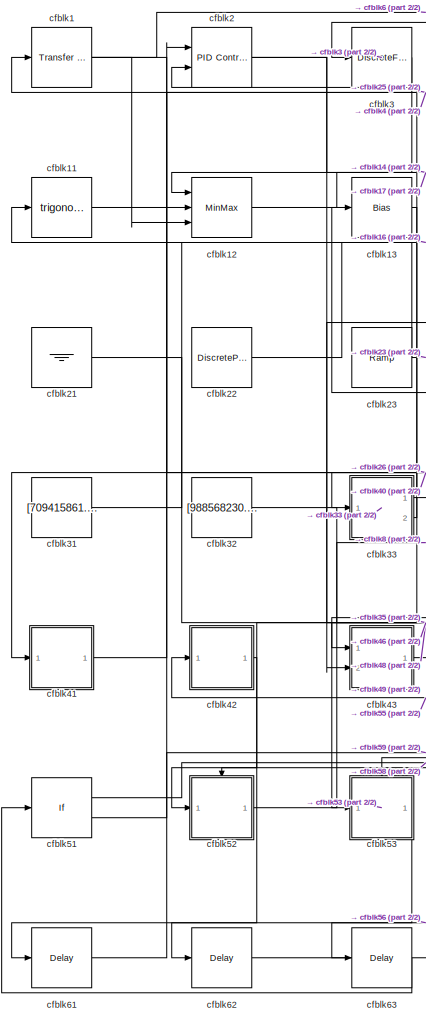
[diagram: root canvas - part 1/2, left side, full height]
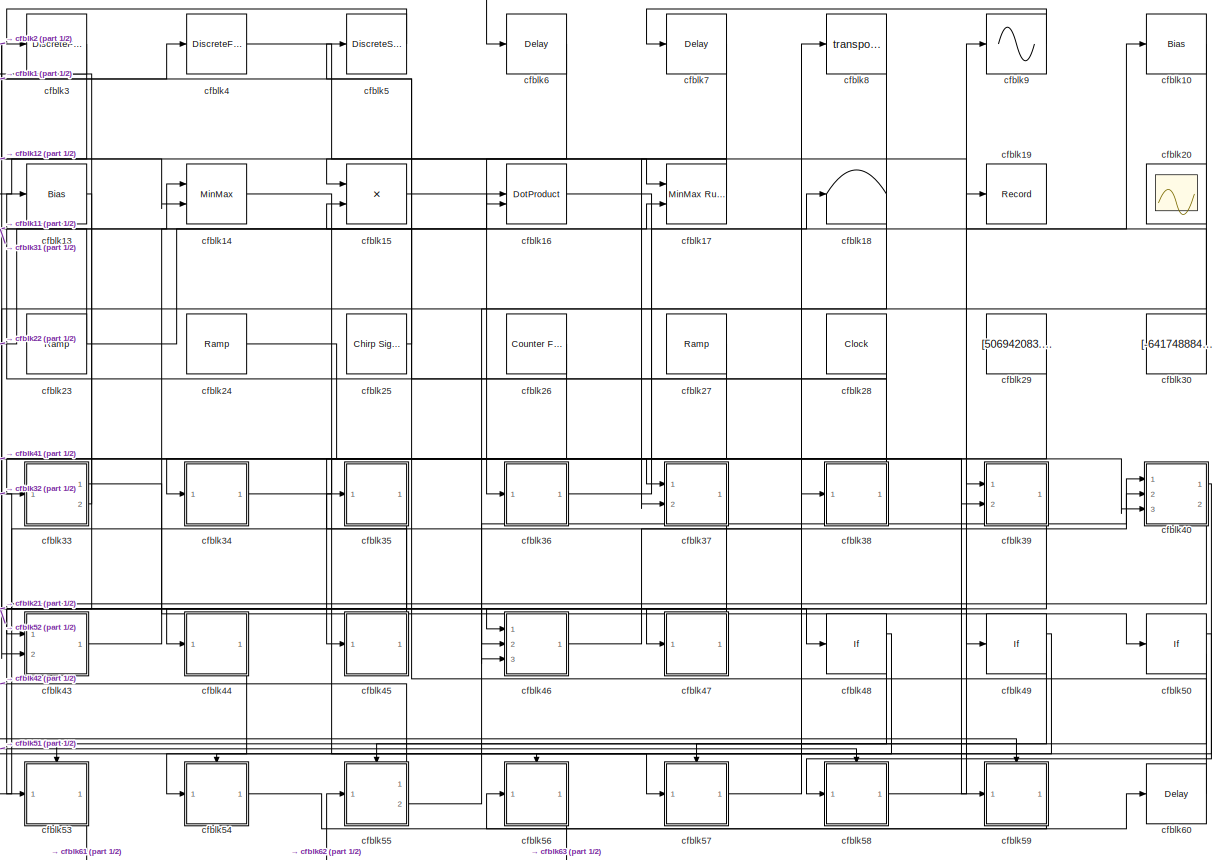
[diagram: root canvas - part 2/2, most of the canvas]
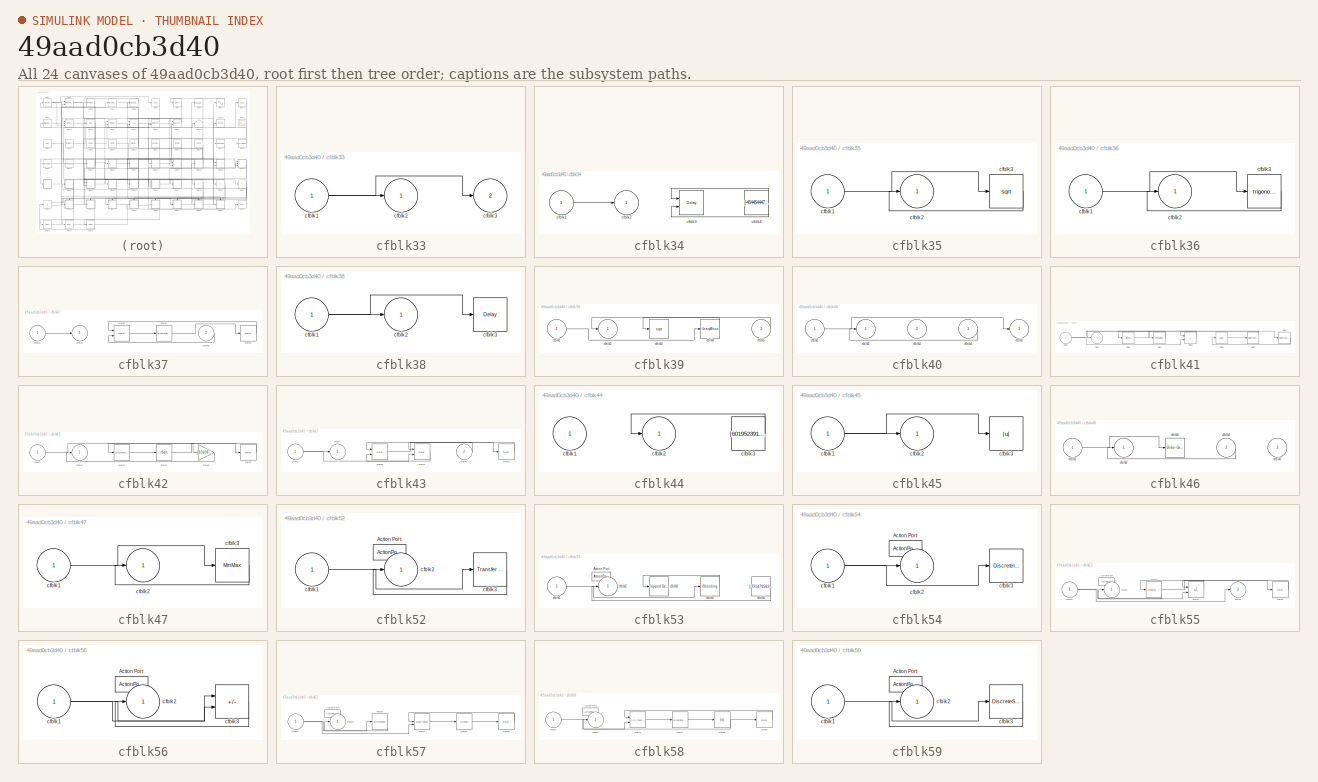
[diagram: thumbnail index - all 24 canvases of the model, root first then tree order]
MODEL slx_49aad0cb3d40
KIND model
CONFIG AbsTol = auto
CONFIG EnableMultiTasking = off
CONFIG FixedStep = auto
CONFIG MaxStep = auto
CONFIG MinStep = auto
CONFIG RelTol = 1e-3
CONFIG SampleTimeConstraint = Unconstrained
CONFIG SolverName = VariableStepAuto
CONFIG StartTime = 0.0
CONFIG StopTime = 10.0
BLOCK [Reference] cfblk1  REF=simulink/Discrete/Transfer Fcn
First Order
  Ports = [1, 1]
  SourceBlock = simulink/Discrete/Transfer Fcn\nFirst Order
  SourceProductBaseCode = SL
  SourceType = First Order Transfer Fcn
BLOCK [Bias] cfblk10
  Bias = [728423195.667612]
  SaturateOnIntegerOverflow = off
BLOCK [Trigonometry] cfblk11
  Ports = [1, 1]
BLOCK [MinMax] cfblk12
  Function = max
  Inputs = 3
  Ports = [3, 1]
BLOCK [Bias] cfblk13
  Bias = [-945384266.597924]
  SaturateOnIntegerOverflow = off
BLOCK [MinMax] cfblk14
  Function = max
  Inputs = 2
  Ports = [2, 1]
BLOCK [Product] cfblk15
  Inputs = **
  Ports = [2, 1]
BLOCK [DotProduct] cfblk16
  OutDataTypeStr = Inherit: Inherit via internal rule
BLOCK [Reference] cfblk17  REF=simulink/Math
Operations/MinMax
Running
Resettable
  Ports = [2, 1]
  SourceBlock = simulink/Math\nOperations/MinMax\nRunning\nResettable
  SourceProductBaseCode = SL
  SourceType = MinMax Running Resettable
BLOCK [Terminator] cfblk18
BLOCK [Record] cfblk19
  FileSettingsInternal = {"entries":[{"content":{"excelSettings":{"content":{},"type":"Streamout.ExcelSettings"}},"type":"Streamout.FileSettingStorage","uuid":"3911a472-867c-4a1a-a0aa-010af150e6e4"}],"packageUris":["http://schema.mathworks.com/mf0/streamout_blocks/R2020a"],"version":"1.0"}
  Ports = [1]
  SignalsInternal = {"entries":[{"content":{"signals":[{"content":{"blockPath":["sampleModel241/cfblk19"],"channel":[],"dimensions":[1],"domain":"sampleModel241/cfblk19","lineColor":"#b746ff","plots":[1],"port":1,"sid":[""],"signalID":9613,"signalName":"cfblk30"},"type":"RecordBlkView.Signal","uuid":"fca61b86-a5da-40ad-9889-f5b6e864dda8"}]},"type":"RecordBlkView.InputSignals","uuid":"c25a0052-ff4f-4ec1-b952-93fc3bd27...<+97ch>
  VisualizationBindings = {"sparklinesplugin":{"info":[{"bindingParametersList":[],"subplotID":1}]}}
BLOCK [Reference] cfblk2  REF=slpidlib/PID Controller (2DOF)
  Ports = [2, 1]
  SourceBlock = slpidlib/PID Controller (2DOF)
  SourceProductBaseCode = SL
  SourceType = PID 2dof
BLOCK [Scope] cfblk20
  Floating = on
  NumInputPorts = 1
  Ports = []
BLOCK [Ground] cfblk21
BLOCK [DiscretePulseGenerator] cfblk22
  Amplitude = [-456282660.783524]
  Period = [50439174.419016]
  PhaseDelay = [5.000000]
  Ports = [0, 1]
  PulseType = Time based
  PulseWidth = 5
BLOCK [Reference] cfblk23  REF=simulink/Sources/Ramp
  Ports = [0, 1]
  SourceBlock = simulink/Sources/Ramp
  SourceProductBaseCode = SL
  SourceType = Ramp
BLOCK [Reference] cfblk24  REF=simulink/Sources/Ramp
  Ports = [0, 1]
  SourceBlock = simulink/Sources/Ramp
  SourceProductBaseCode = SL
  SourceType = Ramp
BLOCK [Reference] cfblk25  REF=simulink/Sources/Chirp Signal
  Ports = [0, 1]
  SourceBlock = simulink/Sources/Chirp Signal
  SourceProductBaseCode = SL
  SourceType = chirp
BLOCK [Reference] cfblk26  REF=simulink/Sources/Counter
Free-Running
  Ports = [0, 1]
  SourceBlock = simulink/Sources/Counter\nFree-Running
  SourceProductBaseCode = SL
  SourceType = Counter Free-Running
BLOCK [Reference] cfblk27  REF=simulink/Sources/Ramp
  Ports = [0, 1]
  SourceBlock = simulink/Sources/Ramp
  SourceProductBaseCode = SL
  SourceType = Ramp
BLOCK [Clock] cfblk28
BLOCK [Constant] cfblk29
  SampleTime = 1
  Value = [506942083.331249]
BLOCK [DiscreteFilter] cfblk3
  InputPortMap = u0
  Ports = [1, 1]
  SampleTime = 1
BLOCK [Constant] cfblk30
  SampleTime = 1
  Value = [-641748884.333943]
BLOCK [Constant] cfblk31
  SampleTime = 1
  Value = [709415861.361676]
BLOCK [Constant] cfblk32
  SampleTime = 1
  Value = [988568230.358613]
BLOCK [SubSystem] cfblk33
  Ports = [1, 2]
  RequestExecContextInheritance = off
BLOCK [Inport] cfblk33/cfblk1
BLOCK [Outport] cfblk33/cfblk2
BLOCK [Outport] cfblk33/cfblk3
  Port = 2
BLOCK [SubSystem] cfblk34
  Ports = [1, 1]
  RequestExecContextInheritance = off
BLOCK [Inport] cfblk34/cfblk1
BLOCK [Outport] cfblk34/cfblk2
BLOCK [Delay] cfblk34/cfblk3
  DelayLengthSource = Input port
  InputPortMap = u0,p1
  Ports = [2, 1]
  SampleTime = 1
BLOCK [Constant] cfblk34/cfblk4
  SampleTime = 1
  Value = [-454454447.053880]
BLOCK [SubSystem] cfblk35
  Ports = [1, 1]
  RequestExecContextInheritance = off
BLOCK [Inport] cfblk35/cfblk1
BLOCK [Outport] cfblk35/cfblk2
BLOCK [Sqrt] cfblk35/cfblk3
BLOCK [SubSystem] cfblk36
  Ports = [1, 1]
  RequestExecContextInheritance = off
BLOCK [Inport] cfblk36/cfblk1
BLOCK [Outport] cfblk36/cfblk2
BLOCK [Trigonometry] cfblk36/cfblk3
  Ports = [1, 1]
BLOCK [SubSystem] cfblk37
  Ports = [2, 1]
  RequestExecContextInheritance = off
BLOCK [Inport] cfblk37/cfblk1
BLOCK [Outport] cfblk37/cfblk2
BLOCK [Delay] cfblk37/cfblk3
  DelayLengthSource = Input port
  InputPortMap = u0,p1
  Ports = [2, 1]
  SampleTime = 1
BLOCK [DiscreteFilter] cfblk37/cfblk4
  InputPortMap = u0
  Ports = [1, 1]
  SampleTime = 1
BLOCK [Inport] cfblk37/cfblk5
  Port = 2
BLOCK [Delay] cfblk37/cfblk6
  InputPortMap = u0
  Ports = [1, 1]
  SampleTime = 1
BLOCK [SubSystem] cfblk38
  Ports = [1, 1]
  RequestExecContextInheritance = off
BLOCK [Inport] cfblk38/cfblk1
BLOCK [Outport] cfblk38/cfblk2
BLOCK [Delay] cfblk38/cfblk3
  InputPortMap = u0
  Ports = [1, 1]
  SampleTime = 1
BLOCK [SubSystem] cfblk39
  Ports = [2, 1]
  RequestExecContextInheritance = off
BLOCK [Inport] cfblk39/cfblk1
BLOCK [Outport] cfblk39/cfblk2
BLOCK [Sqrt] cfblk39/cfblk3
BLOCK [UnaryMinus] cfblk39/cfblk4
BLOCK [Inport] cfblk39/cfblk5
  Port = 2
BLOCK [DiscreteFilter] cfblk4
  InputPortMap = u0
  Ports = [1, 1]
  SampleTime = 1
BLOCK [SubSystem] cfblk40
  Ports = [3, 2]
  RequestExecContextInheritance = off
BLOCK [Inport] cfblk40/cfblk1
BLOCK [Outport] cfblk40/cfblk2
BLOCK [Inport] cfblk40/cfblk3
  Port = 2
BLOCK [Inport] cfblk40/cfblk4
  Port = 3
BLOCK [Outport] cfblk40/cfblk5
  Port = 2
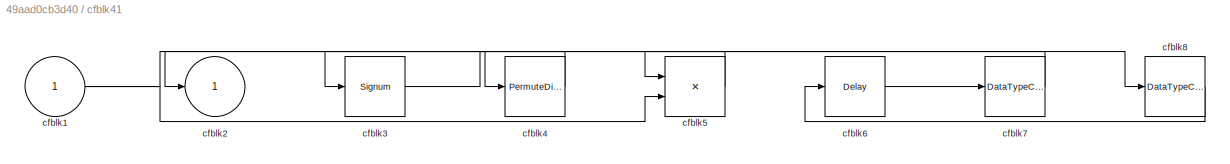
BLOCK [SubSystem] cfblk41
  Ports = [1, 1]
  RequestExecContextInheritance = off
BLOCK [Inport] cfblk41/cfblk1
BLOCK [Outport] cfblk41/cfblk2
BLOCK [Signum] cfblk41/cfblk3
BLOCK [PermuteDimensions] cfblk41/cfblk4
BLOCK [Product] cfblk41/cfblk5
  Inputs = **
  Ports = [2, 1]
BLOCK [Delay] cfblk41/cfblk6
  InputPortMap = u0
  Ports = [1, 1]
  SampleTime = 1
BLOCK [DataTypeConversion] cfblk41/cfblk7
  RndMeth = Floor
  SaturateOnIntegerOverflow = off
BLOCK [DataTypeConversion] cfblk41/cfblk8
  RndMeth = Floor
  SaturateOnIntegerOverflow = off
BLOCK [SubSystem] cfblk42
  Ports = [1, 1]
  RequestExecContextInheritance = off
BLOCK [Inport] cfblk42/cfblk1
BLOCK [Outport] cfblk42/cfblk2
BLOCK [DiscreteStateSpace] cfblk42/cfblk3
BLOCK [Sqrt] cfblk42/cfblk4
  AlgorithmType = Newton-Raphson
  Operator = rSqrt
BLOCK [Gain] cfblk42/cfblk5
  Gain = [-636085994.797784]
BLOCK [Delay] cfblk42/cfblk6
  InputPortMap = u0
  Ports = [1, 1]
  SampleTime = 1
BLOCK [SubSystem] cfblk43
  Ports = [2, 1]
  RequestExecContextInheritance = off
BLOCK [Inport] cfblk43/cfblk1
BLOCK [Outport] cfblk43/cfblk2
BLOCK [Delay] cfblk43/cfblk3
  InputPortMap = u0,e6
  Ports = [2, 1]
  SampleTime = 1
  ShowEnablePort = on
BLOCK [Delay] cfblk43/cfblk4
  InputPortMap = u0,e6
  Ports = [2, 1]
  SampleTime = 1
  ShowEnablePort = on
BLOCK [Inport] cfblk43/cfblk5
  Port = 2
BLOCK [Delay] cfblk43/cfblk6
  InputPortMap = u0
  Ports = [1, 1]
  SampleTime = 1
BLOCK [SubSystem] cfblk44
  Ports = [1, 1]
  RequestExecContextInheritance = off
BLOCK [Inport] cfblk44/cfblk1
BLOCK [Outport] cfblk44/cfblk2
BLOCK [Constant] cfblk44/cfblk3
  SampleTime = 1
  Value = [601952391.588417]
BLOCK [SubSystem] cfblk45
  Ports = [1, 1]
  RequestExecContextInheritance = off
BLOCK [Inport] cfblk45/cfblk1
BLOCK [Outport] cfblk45/cfblk2
BLOCK [Abs] cfblk45/cfblk3
  SaturateOnIntegerOverflow = off
BLOCK [SubSystem] cfblk46
  Ports = [3, 1]
  RequestExecContextInheritance = off
BLOCK [Inport] cfblk46/cfblk1
BLOCK [Outport] cfblk46/cfblk2
BLOCK [Reference] cfblk46/cfblk3  REF=simulink/Math
Operations/Slider
Gain
  Ports = [1, 1]
  SourceBlock = simulink/Math\nOperations/Slider\nGain
  SourceProductBaseCode = SL
  SourceType = Slider Gain
BLOCK [Inport] cfblk46/cfblk4
  Port = 2
BLOCK [Inport] cfblk46/cfblk5
  Port = 3
BLOCK [SubSystem] cfblk47
  Ports = [1, 1]
  RequestExecContextInheritance = off
BLOCK [Inport] cfblk47/cfblk1
BLOCK [Outport] cfblk47/cfblk2
BLOCK [MinMax] cfblk47/cfblk3
  Function = max
  Ports = [1, 1]
BLOCK [If] cfblk48
  IfExpression = u1 >= 0
  Ports = [1, 2]
  SampleTime = 1
BLOCK [If] cfblk49
  IfExpression = u1 >= 0
  Ports = [1, 2]
  SampleTime = 1
BLOCK [DiscreteStateSpace] cfblk5
BLOCK [If] cfblk50
  IfExpression = u1 >= 0
  Ports = [1, 2]
  SampleTime = 1
BLOCK [If] cfblk51
  IfExpression = u1 >= 0
  Ports = [1, 2]
  SampleTime = 1
BLOCK [SubSystem] cfblk52
  Ports = [1, 1, 0, 0, 0, 0, 0, 1]
  RequestExecContextInheritance = off
  TreatAsAtomicUnit = on
BLOCK [ActionPort] cfblk52/Action Port
  ActionPortLabel = if(u1 >= 0)
BLOCK [Inport] cfblk52/cfblk1
BLOCK [Outport] cfblk52/cfblk2
BLOCK [Reference] cfblk52/cfblk3  REF=simulink/Discrete/Transfer Fcn
Lead or Lag
  Ports = [1, 1]
  SourceBlock = simulink/Discrete/Transfer Fcn\nLead or Lag
  SourceProductBaseCode = SL
  SourceType = Lead or Lag Compensator
BLOCK [SubSystem] cfblk53
  Ports = [1, 1, 0, 0, 0, 0, 0, 1]
  RequestExecContextInheritance = off
  TreatAsAtomicUnit = on
BLOCK [ActionPort] cfblk53/Action Port
  ActionPortLabel = else
BLOCK [Inport] cfblk53/cfblk1
BLOCK [Outport] cfblk53/cfblk2
BLOCK [Reference] cfblk53/cfblk3  REF=simulink/Discrete/Tapped Delay
  Ports = [1, 1]
  SourceBlock = simulink/Discrete/Tapped Delay
  SourceProductBaseCode = SL
  SourceType = Tapped Delay Line
BLOCK [Rounding] cfblk53/cfblk4
BLOCK [Constant] cfblk53/cfblk5
  SampleTime = 1
  Value = [-771479563.429662]
BLOCK [SubSystem] cfblk54
  Ports = [1, 1, 0, 0, 0, 0, 0, 1]
  RequestExecContextInheritance = off
  TreatAsAtomicUnit = on
BLOCK [ActionPort] cfblk54/Action Port
  ActionPortLabel = if(u1 >= 0)
BLOCK [Inport] cfblk54/cfblk1
BLOCK [Outport] cfblk54/cfblk2
BLOCK [DiscreteIntegrator] cfblk54/cfblk3
  ICPrevOutput = DiscIntNeverNeededParam
  ICPrevScaledInput = DiscIntNeverNeededParam
  InitialConditionSetting = Auto
  Ports = [1, 1]
  SampleTime = -1
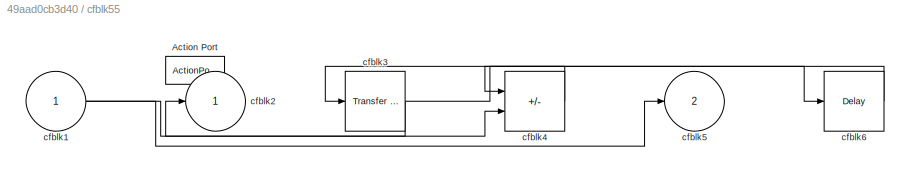
BLOCK [SubSystem] cfblk55
  Ports = [1, 2, 0, 0, 0, 0, 0, 1]
  RequestExecContextInheritance = off
  TreatAsAtomicUnit = on
BLOCK [ActionPort] cfblk55/Action Port
  ActionPortLabel = else
BLOCK [Inport] cfblk55/cfblk1
BLOCK [Outport] cfblk55/cfblk2
BLOCK [Reference] cfblk55/cfblk3  REF=simulink/Discrete/Transfer Fcn
Lead or Lag
  Ports = [1, 1]
  SourceBlock = simulink/Discrete/Transfer Fcn\nLead or Lag
  SourceProductBaseCode = SL
  SourceType = Lead or Lag Compensator
BLOCK [Sum] cfblk55/cfblk4
  IconShape = rectangular
  Inputs = +-
  Ports = [2, 1]
BLOCK [Outport] cfblk55/cfblk5
  Port = 2
BLOCK [Delay] cfblk55/cfblk6
  InputPortMap = u0
  Ports = [1, 1]
BLOCK [SubSystem] cfblk56
  Ports = [1, 1, 0, 0, 0, 0, 0, 1]
  RequestExecContextInheritance = off
  TreatAsAtomicUnit = on
BLOCK [ActionPort] cfblk56/Action Port
  ActionPortLabel = if(u1 >= 0)
BLOCK [Inport] cfblk56/cfblk1
BLOCK [Outport] cfblk56/cfblk2
BLOCK [Sum] cfblk56/cfblk3
  IconShape = rectangular
  Inputs = +-
  Ports = [2, 1]
BLOCK [SubSystem] cfblk57
  Ports = [1, 1, 0, 0, 0, 0, 0, 1]
  RequestExecContextInheritance = off
  TreatAsAtomicUnit = on
BLOCK [ActionPort] cfblk57/Action Port
  ActionPortLabel = else
BLOCK [Inport] cfblk57/cfblk1
BLOCK [Outport] cfblk57/cfblk2
BLOCK [Reference] cfblk57/cfblk3  REF=simulink/Discrete/Difference
  Ports = [1, 1]
  SourceBlock = simulink/Discrete/Difference
  SourceProductBaseCode = SL
  SourceType = Difference
BLOCK [DotProduct] cfblk57/cfblk4
  OutDataTypeStr = Inherit: Inherit via internal rule
BLOCK [Signum] cfblk57/cfblk5
BLOCK [Delay] cfblk57/cfblk6
  InputPortMap = u0
  Ports = [1, 1]
BLOCK [SubSystem] cfblk58
  Ports = [1, 1, 0, 0, 0, 0, 0, 1]
  RequestExecContextInheritance = off
  TreatAsAtomicUnit = on
BLOCK [ActionPort] cfblk58/Action Port
  ActionPortLabel = if(u1 >= 0)
BLOCK [Inport] cfblk58/cfblk1
BLOCK [Outport] cfblk58/cfblk2
BLOCK [Reference] cfblk58/cfblk3  REF=slpidlib/PID Controller (2DOF)
  Ports = [2, 1]
  SourceBlock = slpidlib/PID Controller (2DOF)
  SourceProductBaseCode = SL
  SourceType = PID 2dof
BLOCK [DiscreteIntegrator] cfblk58/cfblk4
  ICPrevOutput = DiscIntNeverNeededParam
  ICPrevScaledInput = DiscIntNeverNeededParam
  InitialConditionSetting = Auto
  Ports = [1, 1]
  SampleTime = -1
BLOCK [Abs] cfblk58/cfblk5
  SaturateOnIntegerOverflow = off
BLOCK [Delay] cfblk58/cfblk6
  InputPortMap = u0
  Ports = [1, 1]
BLOCK [SubSystem] cfblk59
  Ports = [1, 1, 0, 0, 0, 0, 0, 1]
  RequestExecContextInheritance = off
  TreatAsAtomicUnit = on
BLOCK [ActionPort] cfblk59/Action Port
  ActionPortLabel = else
BLOCK [Inport] cfblk59/cfblk1
BLOCK [Outport] cfblk59/cfblk2
BLOCK [DiscreteStateSpace] cfblk59/cfblk3
  SampleTime = -1
BLOCK [Delay] cfblk6
  InputPortMap = u0
  Ports = [1, 1]
  SampleTime = 1
BLOCK [Delay] cfblk60
  InputPortMap = u0
  Ports = [1, 1]
  SampleTime = 1
BLOCK [Delay] cfblk61
  InputPortMap = u0
  Ports = [1, 1]
  SampleTime = 1
BLOCK [Delay] cfblk62
  InputPortMap = u0
  Ports = [1, 1]
  SampleTime = 1
BLOCK [Delay] cfblk63
  InputPortMap = u0
  Ports = [1, 1]
  SampleTime = 1
BLOCK [Delay] cfblk7
  InputPortMap = u0
  Ports = [1, 1]
  SampleTime = 1
BLOCK [Math] cfblk8
  Operator = transpose
  Ports = [1, 1]
BLOCK [Sin] cfblk9
  Ports = [1, 1]
  SampleTime = 0
  TimeSource = Use external signal
LINE cfblk10:1 -> cfblk46:2
LINE cfblk11:1 -> cfblk4:1
LINE cfblk12:1 -> cfblk17:1
LINE cfblk13:1 -> cfblk43:1
LINE cfblk14:1 -> cfblk57:1
LINE cfblk15:1 -> cfblk16:2
LINE cfblk16:1 -> cfblk39:2
LINE cfblk17:1 -> cfblk15:1
NET cfblk1:1 -> cfblk12:3, cfblk40:3, cfblk6:1
LINE cfblk21:1 -> cfblk46:3
LINE cfblk22:1 -> cfblk16:1
NET cfblk23:1 -> cfblk10:1, cfblk11:1
LINE cfblk24:1 -> cfblk59:1
LINE cfblk25:1 -> cfblk1:1
LINE cfblk26:1 -> cfblk41:1
LINE cfblk27:1 -> cfblk34:1
LINE cfblk28:1 -> cfblk33:1
LINE cfblk29:1 -> cfblk45:1
NET cfblk2:1 -> cfblk14:2, cfblk49:1
LINE cfblk30:1 -> cfblk19:1
LINE cfblk31:1 -> cfblk14:1
LINE cfblk32:1 -> cfblk48:1
NET cfblk33/cfblk1:1 -> cfblk33/cfblk2:1, cfblk33/cfblk3:1
LINE cfblk33:1 -> cfblk50:1
LINE cfblk33:2 -> cfblk2:2
LINE cfblk34/cfblk1:1 -> cfblk34/cfblk2:1
NET cfblk34/cfblk4:1 -> cfblk34/cfblk3:1, cfblk34/cfblk3:2
LINE cfblk34:1 -> cfblk37:1
LINE cfblk35/cfblk1:1 -> cfblk35/cfblk3:1
LINE cfblk35/cfblk3:1 -> cfblk35/cfblk2:1
LINE cfblk35:1 -> cfblk52:1
LINE cfblk36/cfblk1:1 -> cfblk36/cfblk3:1
LINE cfblk36/cfblk3:1 -> cfblk36/cfblk2:1
LINE cfblk36:1 -> cfblk18:1
LINE cfblk37/cfblk1:1 -> cfblk37/cfblk2:1
LINE cfblk37/cfblk3:1 -> cfblk37/cfblk4:1
LINE cfblk37/cfblk4:1 -> cfblk37/cfblk6:1
LINE cfblk37/cfblk5:1 -> cfblk37/cfblk3:2
LINE cfblk37/cfblk6:1 -> cfblk37/cfblk3:1
LINE cfblk37:1 -> cfblk47:1
NET cfblk38/cfblk1:1 -> cfblk38/cfblk2:1, cfblk38/cfblk3:1
NET cfblk38:1 -> cfblk13:1, cfblk5:1
LINE cfblk39/cfblk1:1 -> cfblk39/cfblk4:1
LINE cfblk39/cfblk4:1 -> cfblk39/cfblk3:1
LINE cfblk39/cfblk5:1 -> cfblk39/cfblk2:1
LINE cfblk39:1 -> cfblk46:1
LINE cfblk3:1 -> cfblk12:1
LINE cfblk40/cfblk1:1 -> cfblk40/cfblk5:1
LINE cfblk40/cfblk4:1 -> cfblk40/cfblk2:1
LINE cfblk40:1 -> cfblk58:1
LINE cfblk40:2 -> cfblk53:1
NET cfblk41/cfblk1:1 -> cfblk41/cfblk4:1, cfblk41/cfblk5:2
LINE cfblk41/cfblk3:1 -> cfblk41/cfblk8:1
LINE cfblk41/cfblk4:1 -> cfblk41/cfblk2:1
LINE cfblk41/cfblk5:1 -> cfblk41/cfblk3:1
LINE cfblk41/cfblk6:1 -> cfblk41/cfblk7:1
LINE cfblk41/cfblk7:1 -> cfblk41/cfblk5:1
LINE cfblk41/cfblk8:1 -> cfblk41/cfblk6:1
LINE cfblk41:1 -> cfblk2:1
LINE cfblk42/cfblk1:1 -> cfblk42/cfblk5:1
LINE cfblk42/cfblk3:1 -> cfblk42/cfblk4:1
LINE cfblk42/cfblk4:1 -> cfblk42/cfblk6:1
LINE cfblk42/cfblk5:1 -> cfblk42/cfblk2:1
LINE cfblk42/cfblk6:1 -> cfblk42/cfblk3:1
LINE cfblk42:1 -> cfblk62:1
NET cfblk43/cfblk1:1 -> cfblk43/cfblk2:1, cfblk43/cfblk4:2
LINE cfblk43/cfblk3:1 -> cfblk43/cfblk6:1
LINE cfblk43/cfblk4:1 -> cfblk43/cfblk3:2
LINE cfblk43/cfblk5:1 -> cfblk43/cfblk3:1
LINE cfblk43/cfblk6:1 -> cfblk43/cfblk4:1
LINE cfblk43:1 -> cfblk17:2
LINE cfblk44/cfblk3:1 -> cfblk44/cfblk2:1
LINE cfblk44:1 -> cfblk54:1
NET cfblk45/cfblk1:1 -> cfblk45/cfblk2:1, cfblk45/cfblk3:1
LINE cfblk45:1 -> cfblk35:1
LINE cfblk46/cfblk1:1 -> cfblk46/cfblk3:1
LINE cfblk46/cfblk4:1 -> cfblk46/cfblk2:1
LINE cfblk46:1 -> cfblk40:2
LINE cfblk47/cfblk1:1 -> cfblk47/cfblk3:1
LINE cfblk47/cfblk3:1 -> cfblk47/cfblk2:1
LINE cfblk47:1 -> cfblk44:1
LINE cfblk48:1 -> cfblk52:ifaction
LINE cfblk48:2 -> cfblk53:ifaction
LINE cfblk49:1 -> cfblk54:ifaction
LINE cfblk49:2 -> cfblk55:ifaction
LINE cfblk4:1 -> cfblk39:1
LINE cfblk50:1 -> cfblk56:ifaction
LINE cfblk50:2 -> cfblk57:ifaction
LINE cfblk51:1 -> cfblk58:ifaction
LINE cfblk51:2 -> cfblk59:ifaction
LINE cfblk52/cfblk1:1 -> cfblk52/cfblk3:1
LINE cfblk52/cfblk3:1 -> cfblk52/cfblk2:1
LINE cfblk52:1 -> cfblk8:1
LINE cfblk53/cfblk1:1 -> cfblk53/cfblk4:1
LINE cfblk53/cfblk4:1 -> cfblk53/cfblk3:1
LINE cfblk53/cfblk5:1 -> cfblk53/cfblk2:1
LINE cfblk53:1 -> cfblk61:1
NET cfblk54/cfblk1:1 -> cfblk54/cfblk2:1, cfblk54/cfblk3:1
LINE cfblk54:1 -> cfblk60:1
NET cfblk55/cfblk1:1 -> cfblk55/cfblk4:2, cfblk55/cfblk5:1
NET cfblk55/cfblk3:1 -> cfblk55/cfblk2:1, cfblk55/cfblk6:1
LINE cfblk55/cfblk4:1 -> cfblk55/cfblk3:1
LINE cfblk55/cfblk6:1 -> cfblk55/cfblk4:1
LINE cfblk55:1 -> cfblk42:1
LINE cfblk55:2 -> cfblk40:1
NET cfblk56/cfblk1:1 -> cfblk56/cfblk3:1, cfblk56/cfblk3:2
LINE cfblk56/cfblk3:1 -> cfblk56/cfblk2:1
LINE cfblk56:1 -> cfblk63:1
NET cfblk57/cfblk1:1 -> cfblk57/cfblk3:1, cfblk57/cfblk4:2
LINE cfblk57/cfblk3:1 -> cfblk57/cfblk2:1
LINE cfblk57/cfblk4:1 -> cfblk57/cfblk5:1
LINE cfblk57/cfblk5:1 -> cfblk57/cfblk6:1
LINE cfblk57/cfblk6:1 -> cfblk57/cfblk4:1
LINE cfblk57:1 -> cfblk38:1
LINE cfblk58/cfblk1:1 -> cfblk58/cfblk3:2
LINE cfblk58/cfblk3:1 -> cfblk58/cfblk4:1
LINE cfblk58/cfblk4:1 -> cfblk58/cfblk5:1
NET cfblk58/cfblk5:1 -> cfblk58/cfblk2:1, cfblk58/cfblk6:1
LINE cfblk58/cfblk6:1 -> cfblk58/cfblk3:1
LINE cfblk58:1 -> cfblk9:1
LINE cfblk59/cfblk1:1 -> cfblk59/cfblk3:1
LINE cfblk59/cfblk3:1 -> cfblk59/cfblk2:1
LINE cfblk59:1 -> cfblk56:1
LINE cfblk5:1 -> cfblk3:1
LINE cfblk60:1 -> cfblk15:2
LINE cfblk61:1 -> cfblk12:2
LINE cfblk62:1 -> cfblk55:1
LINE cfblk63:1 -> cfblk51:1
LINE cfblk6:1 -> cfblk36:1
LINE cfblk7:1 -> cfblk37:2
LINE cfblk8:1 -> cfblk43:2
LINE cfblk9:1 -> cfblk7:1
note: NET lines group one-source signal fan-out (src -> all destinations, sorted); 1:1 wires keep LINE
